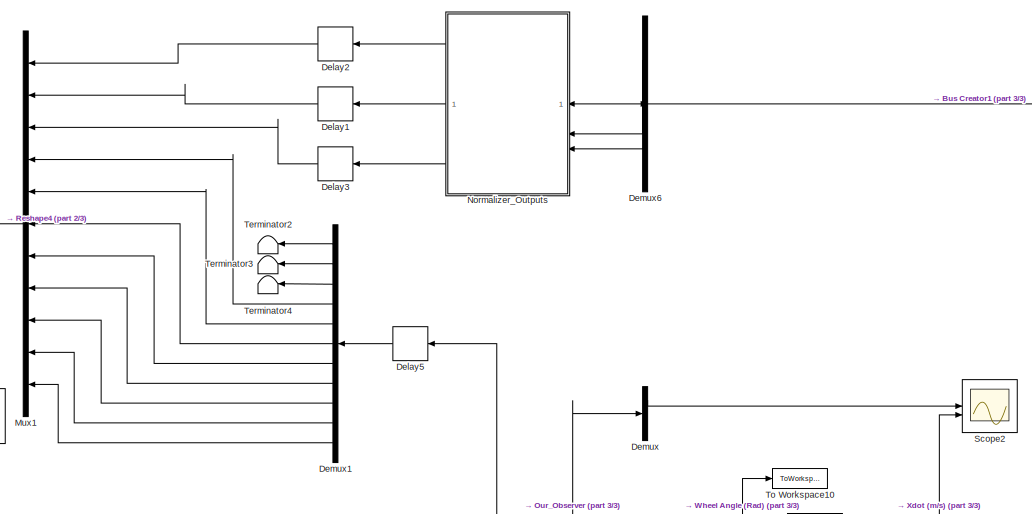
[diagram: root canvas - part 1/3, top center region]
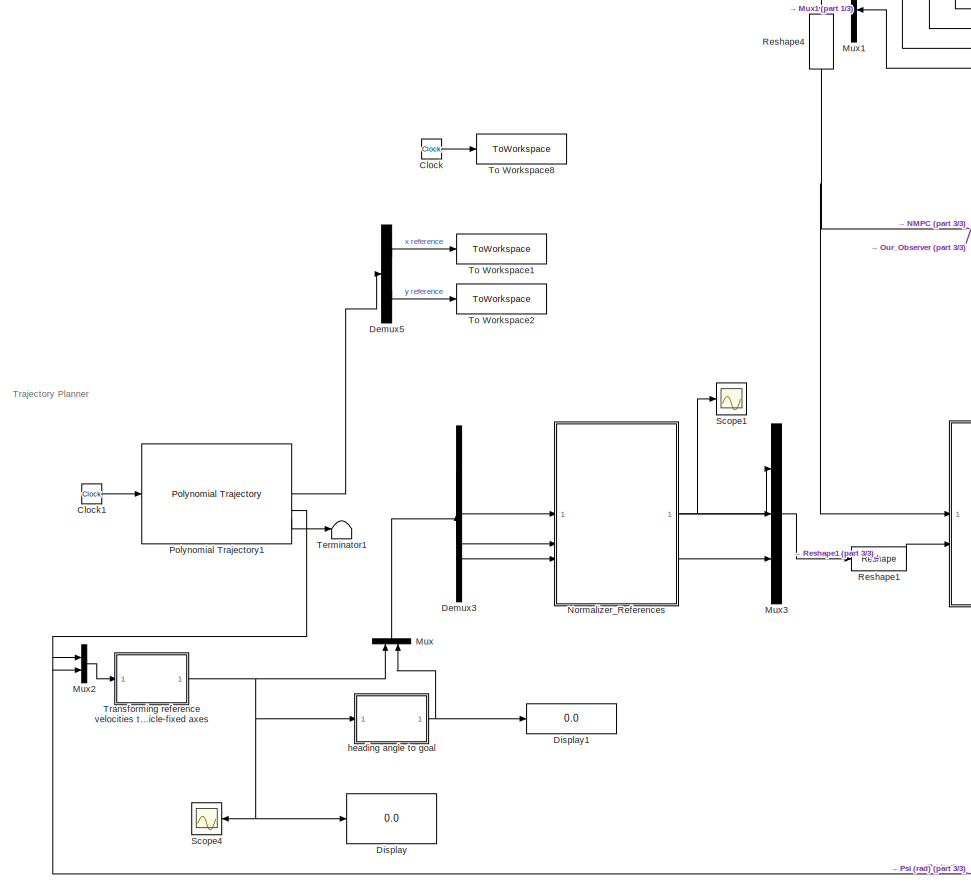
[diagram: root canvas - part 2/3, middle left region]
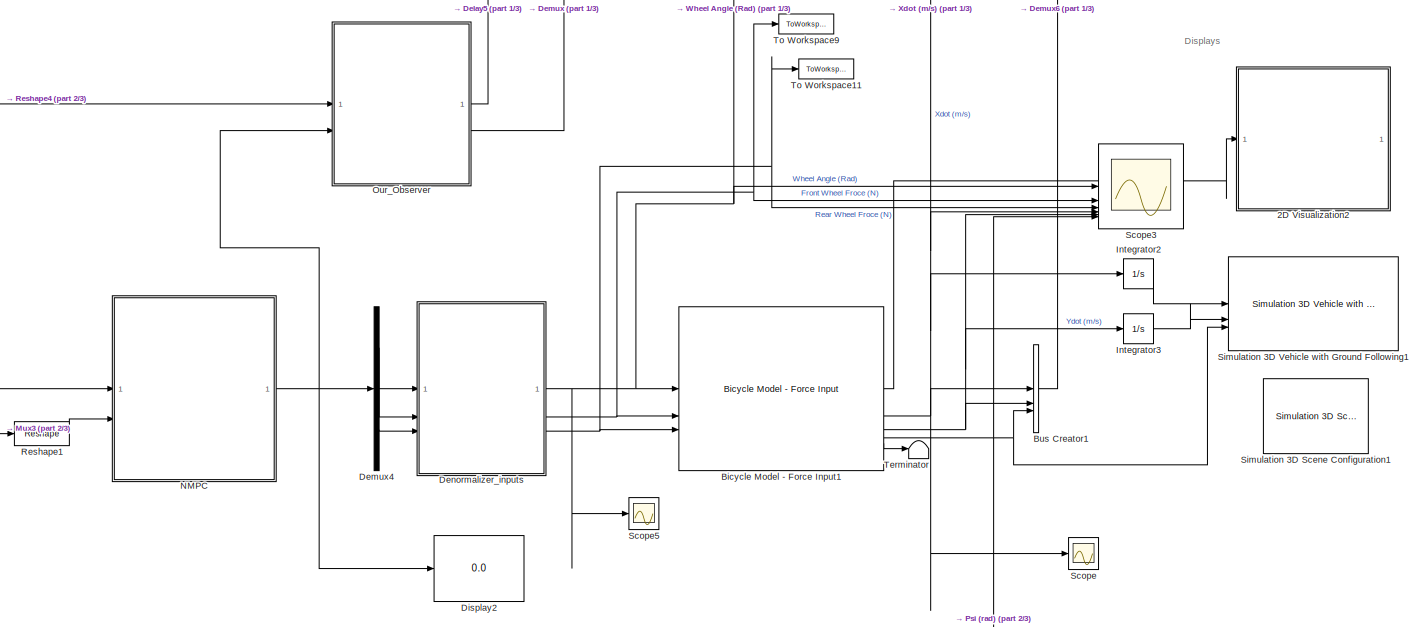
[diagram: root canvas - part 3/3, middle right region]
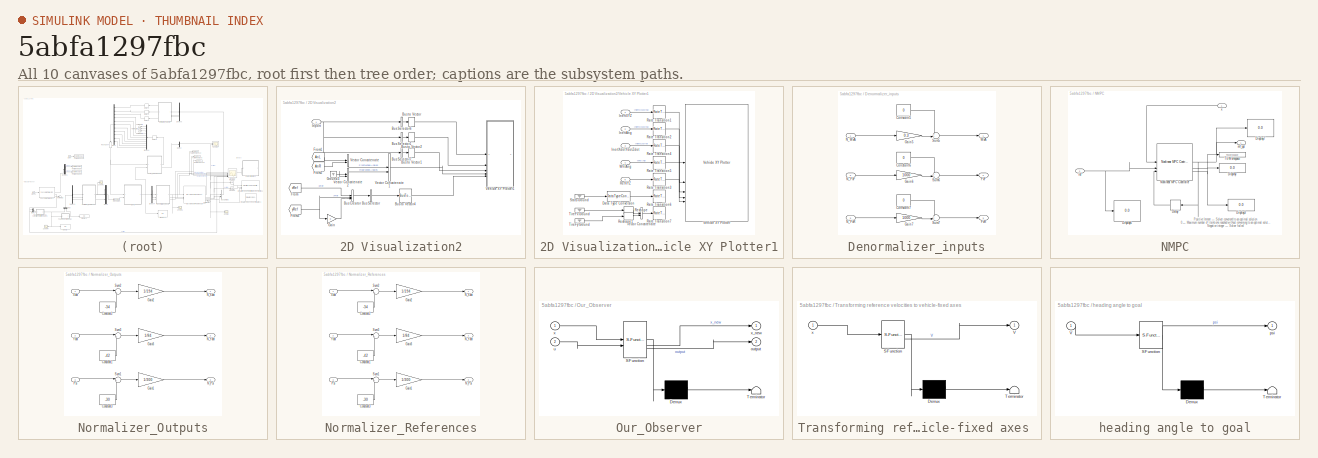
[diagram: thumbnail index - all 10 canvases of the model, root first then tree order]
MODEL slx_5abfa1297fbc
KIND model
CONFIG AbsTol = auto
CONFIG EnableMultiTasking = off
CONFIG FixedStep = 0.1
CONFIG MaxStep = auto
CONFIG MinStep = auto
CONFIG RelTol = 1e-3
CONFIG SampleTimeConstraint = Unconstrained
CONFIG SolverName = FixedStepAuto
CONFIG StartTime = 0.0
CONFIG StopTime = 10.0
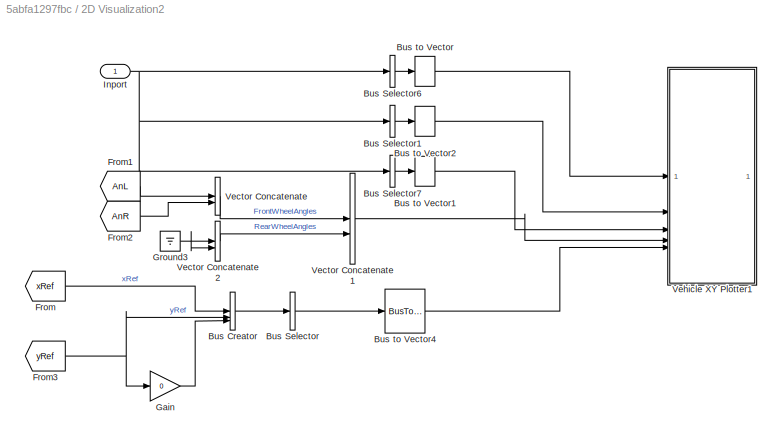
BLOCK [SubSystem] 2D Visualization2
BLOCK [BusCreator] 2D Visualization2/Bus Creator
  DisplayOption = bar
  InheritFromInputs = on
  Inputs = 3
BLOCK [BusSelector] 2D Visualization2/Bus Selector
  OutputAsBus = on
  OutputSignals = xRef,yRef,signal3
BLOCK [BusSelector] 2D Visualization2/Bus Selector1
  OutputAsBus = on
  OutputSignals = InertFrm.Cg.Ang.phi,InertFrm.Cg.Ang.theta,InertFrm.Cg.Ang.psi
BLOCK [BusSelector] 2D Visualization2/Bus Selector6
  OutputAsBus = on
  OutputSignals = InertFrm.Geom.Disp.X,InertFrm.Geom.Disp.Y,InertFrm.Geom.Disp.Z
BLOCK [BusSelector] 2D Visualization2/Bus Selector7
  OutputAsBus = on
  OutputSignals = InertFrm.Geom.Vel.Xdot,InertFrm.Geom.Vel.Ydot,InertFrm.Geom.Vel.Zdot
BLOCK [BusToVector] 2D Visualization2/Bus to Vector
BLOCK [BusToVector] 2D Visualization2/Bus to Vector1
BLOCK [BusToVector] 2D Visualization2/Bus to Vector2
BLOCK [BusToVector] 2D Visualization2/Bus to Vector4
BLOCK [From] 2D Visualization2/From
  GotoTag = xRef
BLOCK [From] 2D Visualization2/From1
  GotoTag = AnL
BLOCK [From] 2D Visualization2/From2
  GotoTag = AnR
BLOCK [From] 2D Visualization2/From3
  GotoTag = yRef
BLOCK [Gain] 2D Visualization2/Gain
  Gain = 0
BLOCK [Ground] 2D Visualization2/Ground3
BLOCK [Inport] 2D Visualization2/Inport
BLOCK [Concatenate] 2D Visualization2/Vector Concatenate
BLOCK [Concatenate] 2D Visualization2/Vector Concatenate1
BLOCK [Concatenate] 2D Visualization2/Vector Concatenate2
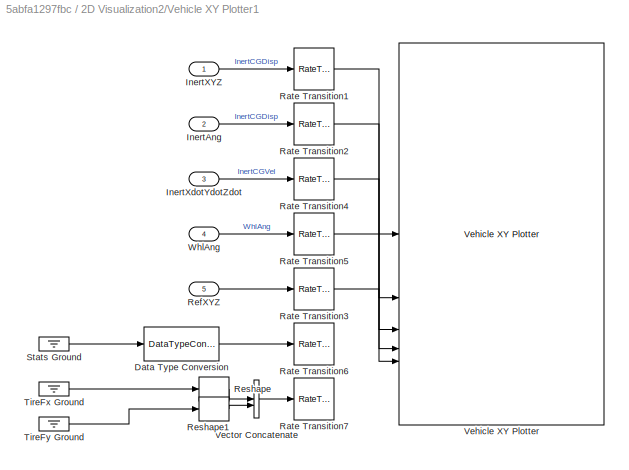
BLOCK [SubSystem] 2D Visualization2/Vehicle XY Plotter1
BLOCK [DataTypeConversion] 2D Visualization2/Vehicle XY Plotter1/Data Type Conversion
  OutDataTypeStr = double
  RndMeth = Floor
  SaturateOnIntegerOverflow = off
BLOCK [Inport] 2D Visualization2/Vehicle XY Plotter1/InertAng
  Port = 2
BLOCK [Inport] 2D Visualization2/Vehicle XY Plotter1/InertXYZ
BLOCK [Inport] 2D Visualization2/Vehicle XY Plotter1/InertXdotYdotZdot
  Port = 3
BLOCK [RateTransition] 2D Visualization2/Vehicle XY Plotter1/Rate Transition1
  Deterministic = off
  OutPortSampleTime = pltDT
BLOCK [RateTransition] 2D Visualization2/Vehicle XY Plotter1/Rate Transition2
  Deterministic = off
  OutPortSampleTime = pltDT
BLOCK [RateTransition] 2D Visualization2/Vehicle XY Plotter1/Rate Transition3
  Deterministic = off
  OutPortSampleTime = pltDT
BLOCK [RateTransition] 2D Visualization2/Vehicle XY Plotter1/Rate Transition4
  Deterministic = off
  OutPortSampleTime = pltDT
BLOCK [RateTransition] 2D Visualization2/Vehicle XY Plotter1/Rate Transition5
  Deterministic = off
  OutPortSampleTime = pltDT
BLOCK [RateTransition] 2D Visualization2/Vehicle XY Plotter1/Rate Transition6
  Deterministic = off
  OutPortSampleTime = pltDT
BLOCK [RateTransition] 2D Visualization2/Vehicle XY Plotter1/Rate Transition7
  Deterministic = off
  OutPortSampleTime = pltDT
BLOCK [Inport] 2D Visualization2/Vehicle XY Plotter1/RefXYZ
  Port = 5
BLOCK [Reshape] 2D Visualization2/Vehicle XY Plotter1/Reshape
  OutputDimensionality = Row vector (2-D)
BLOCK [Reshape] 2D Visualization2/Vehicle XY Plotter1/Reshape1
  OutputDimensionality = Row vector (2-D)
BLOCK [Ground] 2D Visualization2/Vehicle XY Plotter1/Stats Ground
BLOCK [Ground] 2D Visualization2/Vehicle XY Plotter1/TireFx Ground
BLOCK [Ground] 2D Visualization2/Vehicle XY Plotter1/TireFy Ground
BLOCK [Concatenate] 2D Visualization2/Vehicle XY Plotter1/Vector Concatenate
  Mode = Multidimensional array
BLOCK [Reference] 2D Visualization2/Vehicle XY Plotter1/Vehicle XY Plotter  REF=vehdynlibviscommon/Vehicle XY Plotter
  SourceBlock = vehdynlibviscommon/Vehicle XY Plotter
  SourceType = Vehicle XY Plotter
BLOCK [Inport] 2D Visualization2/Vehicle XY Plotter1/WhlAng
  Port = 4
BLOCK [Reference] Bicycle Model - Force Input1  REF=autolibshared/Bicycle Model - Force Input
  LibrarySourceBlock = drivingscenarioandsensors/Bicycle Model - Force Input
  SourceBlock = autolibshared/Bicycle Model - Force Input
  SourceType = Vehicle Body 3DOF Lateral
BLOCK [BusCreator] Bus Creator1
  DisplayOption = bar
  InheritFromInputs = on
  Inputs = 3
BLOCK [Clock] Clock
BLOCK [Clock] Clock1
  Decimation = 19
BLOCK [Delay] Delay1
  DelayLength = 1
  InitialCondition = [0 0 0]
  InputPortMap = u0
  NameLocation = top
BLOCK [Delay] Delay2
  DelayLength = 1
  InitialCondition = [0 0 0]
  InputPortMap = u0
  NameLocation = top
BLOCK [Delay] Delay3
  DelayLength = 1
  InitialCondition = [0 0 0]
  InputPortMap = u0
  NameLocation = top
BLOCK [Delay] Delay5
  DelayLength = 1
  InitialCondition = zeros(11,1)
  InputPortMap = u0
  NameLocation = top
BLOCK [Demux] Demux
  Outputs = 3
BLOCK [Demux] Demux1
  NameLocation = top
  Outputs = 11
BLOCK [Demux] Demux3
  Outputs = 3
BLOCK [Demux] Demux4
  Outputs = 3
BLOCK [Demux] Demux5
  Outputs = 2
BLOCK [Demux] Demux6
  NameLocation = top
  Outputs = 3
BLOCK [SubSystem] Denormalizer_inputs
BLOCK [Constant] Denormalizer_inputs/Constant5
  Value = 0
BLOCK [Constant] Denormalizer_inputs/Constant6
  Value = 0
BLOCK [Constant] Denormalizer_inputs/Constant7
  Value = 0
BLOCK [Outport] Denormalizer_inputs/FxF
  Port = 2
BLOCK [Outport] Denormalizer_inputs/FxR
  Port = 3
BLOCK [Gain] Denormalizer_inputs/Gain5
  Gain = 0.3
BLOCK [Gain] Denormalizer_inputs/Gain6
  Gain = 1000
BLOCK [Gain] Denormalizer_inputs/Gain7
  Gain = 1000
BLOCK [Inport] Denormalizer_inputs/N_FxF
  Port = 2
BLOCK [Inport] Denormalizer_inputs/N_FxR
  Port = 3
BLOCK [Inport] Denormalizer_inputs/N_WxA
BLOCK [Sum] Denormalizer_inputs/Sum5
  Inputs = ++|
BLOCK [Sum] Denormalizer_inputs/Sum6
  Inputs = ++|
BLOCK [Sum] Denormalizer_inputs/Sum7
  Inputs = ++|
BLOCK [Outport] Denormalizer_inputs/WxA
BLOCK [Display] Display
  Decimation = 1
BLOCK [Display] Display1
  Decimation = 1
BLOCK [Display] Display2
  Decimation = 1
BLOCK [Integrator] Integrator2
BLOCK [Integrator] Integrator3
BLOCK [Mux] Mux
  DisplayOption = bar
  Inputs = 2
  NameLocation = right
BLOCK [Mux] Mux1
  DisplayOption = bar
  Inputs = 11
BLOCK [Mux] Mux2
  DisplayOption = bar
  Inputs = 2
BLOCK [Mux] Mux3
  DisplayOption = bar
  Inputs = 3
BLOCK [SubSystem] NMPC
BLOCK [Delay] NMPC/Delay
  DelayLength = 1
  InitialCondition = [0 0 0]
  InputPortMap = u0
  NameLocation = top
BLOCK [Display] NMPC/Display
  Decimation = 1
BLOCK [Display] NMPC/Display3
  Decimation = 1
BLOCK [Display] NMPC/Display6
  Decimation = 1
BLOCK [Display] NMPC/Display7
  Decimation = 1
BLOCK [Reference] NMPC/Nonlinear MPC Controller  REF=mpclib/Nonlinear MPC Controller  (lib defined in mdl_ae329e0e0455)
  SCDEnableBlockLinearizationSpecification = on
  SourceBlock = mpclib/Nonlinear MPC Controller
  SourceType = NonlinearMPC
BLOCK [ToWorkspace] NMPC/To Workspace
  FixptAsFi = on
  MaxDataPoints = inf
  SampleTime = -1
  SaveFormat = Timeseries
  VariableName = mpcout_cost
BLOCK [Outport] NMPC/mf_opt
BLOCK [Inport] NMPC/ref
  Port = 2
BLOCK [Inport] NMPC/x
BLOCK [SubSystem] Normalizer_Outputs
  NameLocation = top
BLOCK [Constant] Normalizer_Outputs/Constant1
  Value = -42
BLOCK [Constant] Normalizer_Outputs/Constant2
  Value = -34
BLOCK [Constant] Normalizer_Outputs/Constant3
  Value = -30
BLOCK [Gain] Normalizer_Outputs/Gain1
  Gain = 1/300
BLOCK [Gain] Normalizer_Outputs/Gain2
  Gain = 1/194
BLOCK [Gain] Normalizer_Outputs/Gain3
  Gain = 1/84
BLOCK [Outport] Normalizer_Outputs/N_Psi
  Port = 3
BLOCK [Outport] Normalizer_Outputs/N_Xdot
BLOCK [Outport] Normalizer_Outputs/N_Ydot
  Port = 2
BLOCK [Inport] Normalizer_Outputs/Psi
  Port = 3
BLOCK [Sum] Normalizer_Outputs/Sum1
  Inputs = |+-
BLOCK [Sum] Normalizer_Outputs/Sum2
  Inputs = |+-
BLOCK [Sum] Normalizer_Outputs/Sum3
  Inputs = |+-
BLOCK [Inport] Normalizer_Outputs/Xdot
BLOCK [Inport] Normalizer_Outputs/Ydot
  Port = 2
BLOCK [SubSystem] Normalizer_References
BLOCK [Constant] Normalizer_References/Constant1
  Value = -42
BLOCK [Constant] Normalizer_References/Constant2
  Value = -34
BLOCK [Constant] Normalizer_References/Constant3
  Value = -30
BLOCK [Gain] Normalizer_References/Gain1
  Gain = 1/300
BLOCK [Gain] Normalizer_References/Gain2
  Gain = 1/194
BLOCK [Gain] Normalizer_References/Gain3
  Gain = 1/84
BLOCK [Outport] Normalizer_References/N_Psi
  Port = 3
BLOCK [Outport] Normalizer_References/N_Xdot
BLOCK [Outport] Normalizer_References/N_Ydot
  Port = 2
BLOCK [Inport] Normalizer_References/Psi
  Port = 3
BLOCK [Sum] Normalizer_References/Sum1
  Inputs = |+-
BLOCK [Sum] Normalizer_References/Sum2
  Inputs = |+-
BLOCK [Sum] Normalizer_References/Sum3
  Inputs = |+-
BLOCK [Inport] Normalizer_References/Xdot
BLOCK [Inport] Normalizer_References/Ydot
  Port = 2
BLOCK [SubSystem] Our_Observer
  ErrorFcn = Stateflow.Translate.translate
  PermitHierarchicalResolution = ExplicitOnly
  SFBlockType = MATLAB Function
  TreatAsAtomicUnit = on
BLOCK [Demux] Our_Observer/ Demux 
  Outputs = 1
BLOCK [S-Function] Our_Observer/ SFunction 
  EnableBusSupport = on
  FunctionName = sf_sfun
  PortCounts = [2 3]
  SFcnIsStateOwnerBlock = off
  SFunctionDeploymentMode = off
  Tag = Stateflow S-Function 1
BLOCK [Terminator] Our_Observer/ Terminator 
BLOCK [Outport] Our_Observer/output
  Port = 2
BLOCK [Inport] Our_Observer/u
  Port = 2
BLOCK [Inport] Our_Observer/x
BLOCK [Outport] Our_Observer/x_new
BLOCK [Reference] Polynomial Trajectory1  REF=robotcorelib/Polynomial Trajectory
  SourceBlock = robotcorelib/Polynomial Trajectory
  SourceType = robotics.slcore.internal.block.PolyTrajSys
BLOCK [Reshape] Reshape1
  OutputDimensionality = Customize
  OutputDimensions = [1,3]
BLOCK [Reshape] Reshape4
  NameLocation = right
  OutputDimensionality = Customize
  OutputDimensions = [11,1]
BLOCK [Scope] Scope
  Floating = off
  NumInputPorts = 1
  ScopeSpecificationString = Simulink.scopes.TimeScopeBlockCfg('CurrentConfiguration', extmgr.ConfigurationSet(extmgr.Configuration('Core','General UI',true),extmgr.Configuration('Core','Source UI',true),extmgr.Configuration('Sources','WiredSimulink',true),extmgr.Configuration('Visuals','Time Domain',true,'SerializedDisplays',{struct('MinYLimReal','-0.24437','MaxYLimReal','2.19937','YLabelReal','','MinYLimMag','0.00000','MaxY...<+1385ch>
BLOCK [Scope] Scope1
  Floating = off
  NumInputPorts = 1
  ScopeSpecificationString = Simulink.scopes.TimeScopeBlockCfg('CurrentConfiguration', extmgr.ConfigurationSet(extmgr.Configuration('Core','General UI',true),extmgr.Configuration('Core','Source UI',true),extmgr.Configuration('Sources','WiredSimulink',true,'DataLoggingVariableName','ScopeData4'),extmgr.Configuration('Visuals','Time Domain',true,'SerializedDisplays',{struct('MinYLimReal','0.17429','MaxYLimReal','0.18395','YLabe...<+1435ch>
BLOCK [Scope] Scope2
  Floating = off
  NumInputPorts = 2
  ScopeSpecificationString = Simulink.scopes.TimeScopeBlockCfg('CurrentConfiguration', extmgr.ConfigurationSet(extmgr.Configuration('Core','General UI',true),extmgr.Configuration('Core','Source UI',true),extmgr.Configuration('Sources','WiredSimulink',true,'DataLoggingVariableName','ScopeData5'),extmgr.Configuration('Visuals','Time Domain',true,'SerializedDisplays',{struct('MinYLimReal','-0.24437','MaxYLimReal','2.19937','YLab...<+1431ch>
BLOCK [Scope] Scope3
  Floating = off
  NumInputPorts = 6
  ScopeSpecificationString = Simulink.scopes.TimeScopeBlockCfg('CurrentConfiguration', extmgr.ConfigurationSet(extmgr.Configuration('Core','General UI',true,'FigureColor',[1 1 1],'DisplayFullSourceName',true),extmgr.Configuration('Core','Source UI',true),extmgr.Configuration('Sources','WiredSimulink',true,'DataLoggingVariableName','ScopeData3'),extmgr.Configuration('Visuals','Time Domain',true,'SerializedDisplays',{struct('Mi...<+5898ch>
BLOCK [Scope] Scope4
  Floating = off
  NameLocation = top
  NumInputPorts = 1
  ScopeSpecificationString = Simulink.scopes.TimeScopeBlockCfg('CurrentConfiguration', extmgr.ConfigurationSet(extmgr.Configuration('Core','General UI',true),extmgr.Configuration('Core','Source UI',true),extmgr.Configuration('Sources','WiredSimulink',true,'DataLoggingVariableName','ScopeData1'),extmgr.Configuration('Visuals','Time Domain',true,'SerializedDisplays',{struct('MinYLimReal','-0.28153','MaxYLimReal','1.69676','YLab...<+1465ch>
BLOCK [Scope] Scope5
  Floating = off
  NumInputPorts = 1
  ScopeSpecificationString = Simulink.scopes.TimeScopeBlockCfg('CurrentConfiguration', extmgr.ConfigurationSet(extmgr.Configuration('Core','General UI',true),extmgr.Configuration('Core','Source UI',true),extmgr.Configuration('Sources','WiredSimulink',true,'DataLoggingVariableName','ScopeData2'),extmgr.Configuration('Visuals','Time Domain',true,'SerializedDisplays',{struct('MinYLimReal','-0.00053','MaxYLimReal','0.00027','YLab...<+1431ch>
BLOCK [Reference] Simulation 3D Scene Configuration1  REF=sim3dlib/Simulation 3D Scene Configuration
  Priority = 0
  SourceBlock = sim3dlib/Simulation 3D Scene Configuration
  SourceType = Simulation 3D Scene Configuration
BLOCK [Reference] Simulation 3D Vehicle with Ground Following1  REF=sim3dautolib/Simulation 3D Vehicle with Ground Following VDBS
  LibrarySourceBlock = vehdynlibsim3d/Simulation 3D Vehicle with Ground Following
  Priority = -1
  SourceBlock = sim3dautolib/Simulation 3D Vehicle with Ground Following VDBS
  SourceType = Simulation 3D Vehicle with Ground Following
BLOCK [Terminator] Terminator
BLOCK [Terminator] Terminator1
BLOCK [Terminator] Terminator2
  NameLocation = top
BLOCK [Terminator] Terminator3
  NameLocation = top
BLOCK [Terminator] Terminator4
  NameLocation = top
BLOCK [ToWorkspace] To Workspace1
  FixptAsFi = on
  MaxDataPoints = inf
  SampleTime = -1
  Save2DSignal = 2-D array (concatenate along first dimension)
  VariableName = r
BLOCK [ToWorkspace] To Workspace10
  FixptAsFi = on
  MaxDataPoints = inf
  SampleTime = 0.1
  SaveFormat = Timeseries
  VariableName = WhlAngF1
BLOCK [ToWorkspace] To Workspace11
  FixptAsFi = on
  MaxDataPoints = inf
  SampleTime = 0.1
  SaveFormat = Timeseries
  VariableName = FxR1
BLOCK [ToWorkspace] To Workspace2
  FixptAsFi = on
  MaxDataPoints = inf
  SampleTime = -1
  Save2DSignal = 2-D array (concatenate along first dimension)
  VariableName = Yref1
BLOCK [ToWorkspace] To Workspace8
  FixptAsFi = on
  MaxDataPoints = inf
  SampleTime = -1
  SaveFormat = Timeseries
  VariableName = t
BLOCK [ToWorkspace] To Workspace9
  FixptAsFi = on
  MaxDataPoints = inf
  SampleTime = 0.1
  SaveFormat = Timeseries
  VariableName = FxF1
BLOCK [SubSystem] Transforming reference velocities to vehicle-fixed axes 
  ErrorFcn = Stateflow.Translate.translate
  PermitHierarchicalResolution = ExplicitOnly
  SFBlockType = MATLAB Function
  TreatAsAtomicUnit = on
BLOCK [Demux] Transforming reference velocities to vehicle-fixed axes / Demux 
  Outputs = 1
BLOCK [S-Function] Transforming reference velocities to vehicle-fixed axes / SFunction 
  EnableBusSupport = on
  FunctionName = sf_sfun
  PortCounts = [1 2]
  SFcnIsStateOwnerBlock = off
  SFunctionDeploymentMode = off
  Tag = Stateflow S-Function 3
BLOCK [Terminator] Transforming reference velocities to vehicle-fixed axes / Terminator 
BLOCK [Outport] Transforming reference velocities to vehicle-fixed axes /V
BLOCK [Inport] Transforming reference velocities to vehicle-fixed axes /x
BLOCK [SubSystem] heading angle to goal
  ErrorFcn = Stateflow.Translate.translate
  PermitHierarchicalResolution = ExplicitOnly
  SFBlockType = MATLAB Function
  TreatAsAtomicUnit = on
BLOCK [Demux] heading angle to goal/ Demux 
  Outputs = 1
BLOCK [S-Function] heading angle to goal/ SFunction 
  EnableBusSupport = on
  FunctionName = sf_sfun
  PortCounts = [1 2]
  SFcnIsStateOwnerBlock = off
  SFunctionDeploymentMode = off
  Tag = Stateflow S-Function 2
BLOCK [Terminator] heading angle to goal/ Terminator 
BLOCK [Inport] heading angle to goal/V
BLOCK [Outport] heading angle to goal/psi
ANNOTATION (root): Displays
ANNOTATION (root): Trajectory Planner
ANNOTATION NMPC: Positive Integer — Solver converged to an optimal solution 0 — Maximum number of iterations reached without converging to an optimal solution Negative integer — Solver failed
LINE 2D Visualization2/Bus Creator:1 -> 2D Visualization2/Bus Selector:1
LINE 2D Visualization2/Bus Selector1:1 -> 2D Visualization2/Bus to Vector2:1
LINE 2D Visualization2/Bus Selector6:1 -> 2D Visualization2/Bus to Vector:1
LINE 2D Visualization2/Bus Selector7:1 -> 2D Visualization2/Bus to Vector1:1
LINE 2D Visualization2/Bus Selector:1 -> 2D Visualization2/Bus to Vector4:1
LINE 2D Visualization2/Bus to Vector1:1 -> 2D Visualization2/Vehicle XY Plotter1:3
LINE 2D Visualization2/Bus to Vector2:1 -> 2D Visualization2/Vehicle XY Plotter1:2
LINE 2D Visualization2/Bus to Vector4:1 -> 2D Visualization2/Vehicle XY Plotter1:5
LINE 2D Visualization2/Bus to Vector:1 -> 2D Visualization2/Vehicle XY Plotter1:1
LINE 2D Visualization2/From1:1 -> 2D Visualization2/Vector Concatenate:1
LINE 2D Visualization2/From2:1 -> 2D Visualization2/Vector Concatenate:2
NET 2D Visualization2/From3:1 -> 2D Visualization2/Bus Creator:2, 2D Visualization2/Gain:1
LINE 2D Visualization2/From:1 -> 2D Visualization2/Bus Creator:1
LINE 2D Visualization2/Gain:1 -> 2D Visualization2/Bus Creator:3
NET 2D Visualization2/Ground3:1 -> 2D Visualization2/Vector Concatenate2:1, 2D Visualization2/Vector Concatenate2:2
NET 2D Visualization2/Inport:1 -> 2D Visualization2/Bus Selector1:1, 2D Visualization2/Bus Selector6:1, 2D Visualization2/Bus Selector7:1
LINE 2D Visualization2/Vector Concatenate1:1 -> 2D Visualization2/Vehicle XY Plotter1:4
LINE 2D Visualization2/Vector Concatenate2:1 -> 2D Visualization2/Vector Concatenate1:2
LINE 2D Visualization2/Vector Concatenate:1 -> 2D Visualization2/Vector Concatenate1:1
LINE 2D Visualization2/Vehicle XY Plotter1/Data Type Conversion:1 -> 2D Visualization2/Vehicle XY Plotter1/Rate Transition6:1
LINE 2D Visualization2/Vehicle XY Plotter1/InertAng:1 -> 2D Visualization2/Vehicle XY Plotter1/Rate Transition2:1
LINE 2D Visualization2/Vehicle XY Plotter1/InertXYZ:1 -> 2D Visualization2/Vehicle XY Plotter1/Rate Transition1:1
LINE 2D Visualization2/Vehicle XY Plotter1/InertXdotYdotZdot:1 -> 2D Visualization2/Vehicle XY Plotter1/Rate Transition4:1
LINE 2D Visualization2/Vehicle XY Plotter1/Rate Transition1:1 -> 2D Visualization2/Vehicle XY Plotter1/Vehicle XY Plotter:1
LINE 2D Visualization2/Vehicle XY Plotter1/Rate Transition2:1 -> 2D Visualization2/Vehicle XY Plotter1/Vehicle XY Plotter:2
LINE 2D Visualization2/Vehicle XY Plotter1/Rate Transition3:1 -> 2D Visualization2/Vehicle XY Plotter1/Vehicle XY Plotter:5
LINE 2D Visualization2/Vehicle XY Plotter1/Rate Transition4:1 -> 2D Visualization2/Vehicle XY Plotter1/Vehicle XY Plotter:3
LINE 2D Visualization2/Vehicle XY Plotter1/Rate Transition5:1 -> 2D Visualization2/Vehicle XY Plotter1/Vehicle XY Plotter:4
LINE 2D Visualization2/Vehicle XY Plotter1/RefXYZ:1 -> 2D Visualization2/Vehicle XY Plotter1/Rate Transition3:1
LINE 2D Visualization2/Vehicle XY Plotter1/Reshape1:1 -> 2D Visualization2/Vehicle XY Plotter1/Vector Concatenate:2
LINE 2D Visualization2/Vehicle XY Plotter1/Reshape:1 -> 2D Visualization2/Vehicle XY Plotter1/Vector Concatenate:1
LINE 2D Visualization2/Vehicle XY Plotter1/Stats Ground:1 -> 2D Visualization2/Vehicle XY Plotter1/Data Type Conversion:1
LINE 2D Visualization2/Vehicle XY Plotter1/TireFx Ground:1 -> 2D Visualization2/Vehicle XY Plotter1/Reshape:1
LINE 2D Visualization2/Vehicle XY Plotter1/TireFy Ground:1 -> 2D Visualization2/Vehicle XY Plotter1/Reshape1:1
LINE 2D Visualization2/Vehicle XY Plotter1/Vector Concatenate:1 -> 2D Visualization2/Vehicle XY Plotter1/Rate Transition7:1
LINE 2D Visualization2/Vehicle XY Plotter1/WhlAng:1 -> 2D Visualization2/Vehicle XY Plotter1/Rate Transition5:1
LINE Bicycle Model - Force Input1:1 -> 2D Visualization2:1
NET Bicycle Model - Force Input1:2 -> Bus Creator1:1, Integrator2:1, Scope2:2, Scope3:4, Scope:1
NET Bicycle Model - Force Input1:3 -> Bus Creator1:2, Integrator3:1, Scope3:5
NET Bicycle Model - Force Input1:4 -> Bus Creator1:3, Mux2:2, Scope3:6, Simulation 3D Vehicle with Ground Following1:3
LINE Bicycle Model - Force Input1:5 -> Terminator:1
LINE Bus Creator1:1 -> Demux6:1
LINE Clock1:1 -> Polynomial Trajectory1:1
LINE Clock:1 -> To Workspace8:1
LINE Delay1:1 -> Mux1:2
LINE Delay2:1 -> Mux1:1
LINE Delay3:1 -> Mux1:3
LINE Delay5:1 -> Demux1:1
LINE Demux1:1 -> Terminator2:1
LINE Demux1:10 -> Mux1:10
LINE Demux1:11 -> Mux1:11
LINE Demux1:2 -> Terminator3:1
LINE Demux1:3 -> Terminator4:1
LINE Demux1:4 -> Mux1:4
LINE Demux1:5 -> Mux1:5
LINE Demux1:6 -> Mux1:6
LINE Demux1:7 -> Mux1:7
LINE Demux1:8 -> Mux1:8
LINE Demux1:9 -> Mux1:9
LINE Demux3:1 -> Normalizer_References:1
LINE Demux3:2 -> Normalizer_References:2
LINE Demux3:3 -> Normalizer_References:3
LINE Demux4:1 -> Denormalizer_inputs:1
LINE Demux4:2 -> Denormalizer_inputs:2
LINE Demux4:3 -> Denormalizer_inputs:3
LINE Demux5:1 -> To Workspace1:1
LINE Demux5:2 -> To Workspace2:1
LINE Demux6:1 -> Normalizer_Outputs:1
LINE Demux6:2 -> Normalizer_Outputs:2
LINE Demux6:3 -> Normalizer_Outputs:3
LINE Demux:1 -> Scope2:1
LINE Denormalizer_inputs/Constant5:1 -> Denormalizer_inputs/Sum5:1
LINE Denormalizer_inputs/Constant6:1 -> Denormalizer_inputs/Sum6:1
LINE Denormalizer_inputs/Constant7:1 -> Denormalizer_inputs/Sum7:1
LINE Denormalizer_inputs/Gain5:1 -> Denormalizer_inputs/Sum5:2
LINE Denormalizer_inputs/Gain6:1 -> Denormalizer_inputs/Sum6:2
LINE Denormalizer_inputs/Gain7:1 -> Denormalizer_inputs/Sum7:2
LINE Denormalizer_inputs/N_FxF:1 -> Denormalizer_inputs/Gain6:1
LINE Denormalizer_inputs/N_FxR:1 -> Denormalizer_inputs/Gain7:1
LINE Denormalizer_inputs/N_WxA:1 -> Denormalizer_inputs/Gain5:1
LINE Denormalizer_inputs/Sum5:1 -> Denormalizer_inputs/WxA:1
LINE Denormalizer_inputs/Sum6:1 -> Denormalizer_inputs/FxF:1
LINE Denormalizer_inputs/Sum7:1 -> Denormalizer_inputs/FxR:1
NET Denormalizer_inputs:1 -> Bicycle Model - Force Input1:1, Scope3:1, Scope5:1, To Workspace10:1
NET Denormalizer_inputs:2 -> Bicycle Model - Force Input1:2, Scope3:2, To Workspace9:1
NET Denormalizer_inputs:3 -> Bicycle Model - Force Input1:3, Scope3:3, To Workspace11:1
LINE Integrator2:1 -> Simulation 3D Vehicle with Ground Following1:1
LINE Integrator3:1 -> Simulation 3D Vehicle with Ground Following1:2
LINE Mux1:1 -> Reshape4:1
LINE Mux2:1 -> Transforming reference velocities to vehicle-fixed axes :1
LINE Mux3:1 -> Reshape1:1
LINE Mux:1 -> Demux3:1
LINE NMPC/Delay:1 -> NMPC/Nonlinear MPC Controller:3
NET NMPC/Nonlinear MPC Controller:1 -> NMPC/Delay:1, NMPC/Display7:1, NMPC/mf_opt:1
NET NMPC/Nonlinear MPC Controller:2 -> NMPC/Display:1, NMPC/To Workspace:1
LINE NMPC/Nonlinear MPC Controller:3 -> NMPC/Display3:1
NET NMPC/ref:1 -> NMPC/Display6:1, NMPC/Nonlinear MPC Controller:2
LINE NMPC/x:1 -> NMPC/Nonlinear MPC Controller:1
NET NMPC:1 -> Demux4:1, Display2:1, Our_Observer:2
LINE Normalizer_Outputs/Constant1:1 -> Normalizer_Outputs/Sum3:2
LINE Normalizer_Outputs/Constant2:1 -> Normalizer_Outputs/Sum2:2
LINE Normalizer_Outputs/Constant3:1 -> Normalizer_Outputs/Sum1:2
LINE Normalizer_Outputs/Gain1:1 -> Normalizer_Outputs/N_Psi:1
LINE Normalizer_Outputs/Gain2:1 -> Normalizer_Outputs/N_Xdot:1
LINE Normalizer_Outputs/Gain3:1 -> Normalizer_Outputs/N_Ydot:1
LINE Normalizer_Outputs/Psi:1 -> Normalizer_Outputs/Sum1:1
LINE Normalizer_Outputs/Sum1:1 -> Normalizer_Outputs/Gain1:1
LINE Normalizer_Outputs/Sum2:1 -> Normalizer_Outputs/Gain2:1
LINE Normalizer_Outputs/Sum3:1 -> Normalizer_Outputs/Gain3:1
LINE Normalizer_Outputs/Xdot:1 -> Normalizer_Outputs/Sum2:1
LINE Normalizer_Outputs/Ydot:1 -> Normalizer_Outputs/Sum3:1
LINE Normalizer_Outputs:1 -> Delay2:1
LINE Normalizer_Outputs:2 -> Delay1:1
LINE Normalizer_Outputs:3 -> Delay3:1
LINE Normalizer_References/Constant1:1 -> Normalizer_References/Sum3:2
LINE Normalizer_References/Constant2:1 -> Normalizer_References/Sum2:2
LINE Normalizer_References/Constant3:1 -> Normalizer_References/Sum1:2
LINE Normalizer_References/Gain1:1 -> Normalizer_References/N_Psi:1
LINE Normalizer_References/Gain2:1 -> Normalizer_References/N_Xdot:1
LINE Normalizer_References/Gain3:1 -> Normalizer_References/N_Ydot:1
LINE Normalizer_References/Psi:1 -> Normalizer_References/Sum1:1
LINE Normalizer_References/Sum1:1 -> Normalizer_References/Gain1:1
LINE Normalizer_References/Sum2:1 -> Normalizer_References/Gain2:1
LINE Normalizer_References/Sum3:1 -> Normalizer_References/Gain3:1
LINE Normalizer_References/Xdot:1 -> Normalizer_References/Sum2:1
LINE Normalizer_References/Ydot:1 -> Normalizer_References/Sum3:1
NET Normalizer_References:1 -> Mux3:1, Scope1:1
LINE Normalizer_References:2 -> Mux3:2
LINE Normalizer_References:3 -> Mux3:3
LINE Our_Observer:1 -> Delay5:1
LINE Our_Observer:2 -> Demux:1
LINE Polynomial Trajectory1:1 -> Demux5:1
LINE Polynomial Trajectory1:2 -> Mux2:1
LINE Polynomial Trajectory1:3 -> Terminator1:1
LINE Reshape1:1 -> NMPC:2
NET Reshape4:1 -> NMPC:1, Our_Observer:1
NET Transforming reference velocities to vehicle-fixed axes :1 -> Display:1, Mux:1, Scope4:1, heading angle to goal:1
NET heading angle to goal:1 -> Display1:1, Mux:2
note: NET lines group one-source signal fan-out (src -> all destinations, sorted); 1:1 wires keep LINE
CHART Our_Observer states=1 transitions=1
  STATE_LABEL 'eML_blk_kernel()'
  STATE_LABEL 'SCRIPT:\nfunction [x_new, output]   =  GRU_function(x,u)\nh_t  =  x(4 : end);\n% Initialize weights and biases\nW_input  =  [-0.095897 -0.012435 0.027793 0.371231 -0.005094 0.124832;-0.001613 0.000280 -0.001032 0.120837 -0.051541 -0.089163;-0.020829 0.003020 0.000128 -0.006392 0.119840 -0.011985;0.028522 -0.010024 -0.006695 -0.344397 -0.163646 -0.246519;-0.014741 -0.006104 -0.004543 0.112781 -0.026581...<+3608ch>'
CHART heading angle to goal states=1 transitions=1
  STATE_LABEL 'eML_blk_kernel()'
  STATE_LABEL 'SCRIPT:\nfunction psi = fcn(V)\n\nv1 =V(1);\nv2 =V(2);\npsi = atan2(v2,v1);\n'
CHART Transforming reference velocities to vehicle-fixed axes  states=1 transitions=1
  STATE_LABEL 'eML_blk_kernel()'
  STATE_LABEL 'SCRIPT:\nfunction V = fcn(x)\n\n\nV = [cos(x(3)) sin(x(3));\n    -sin(x(3)) cos(x(3))]*[x(1); x(2)];'
CHART  states=0 transitions=0
CHART  states=0 transitions=0
CHART  states=0 transitions=0
